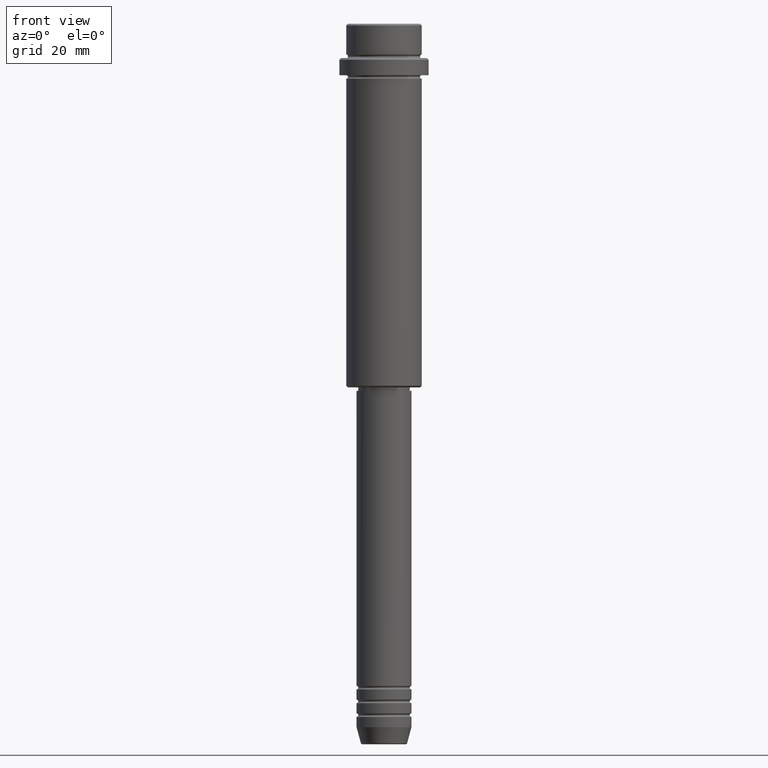
[diagram: clean part render]
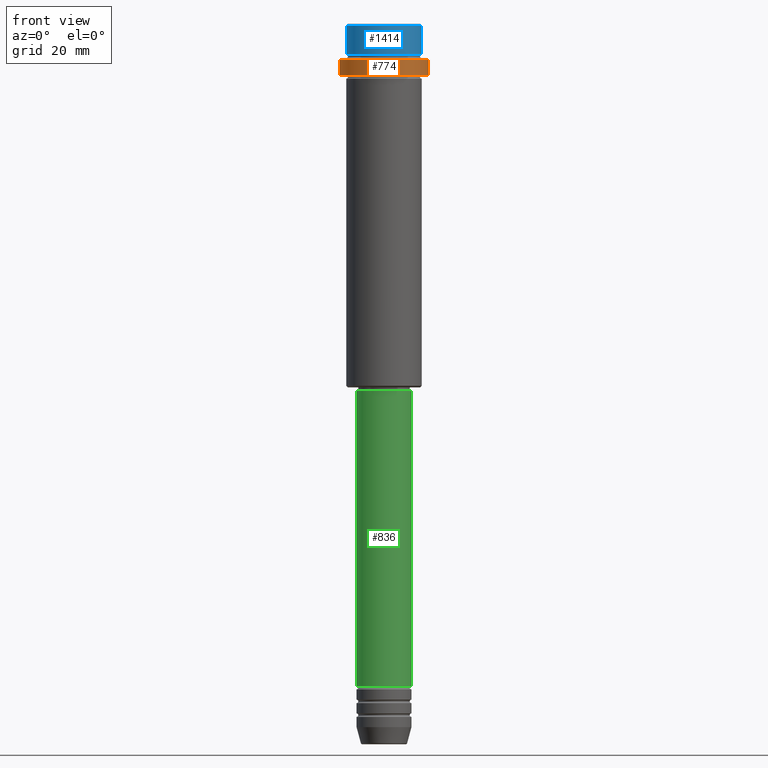
[diagram: same view with three faces highlighted in distinct colors, each labeled with its STEP entity id]
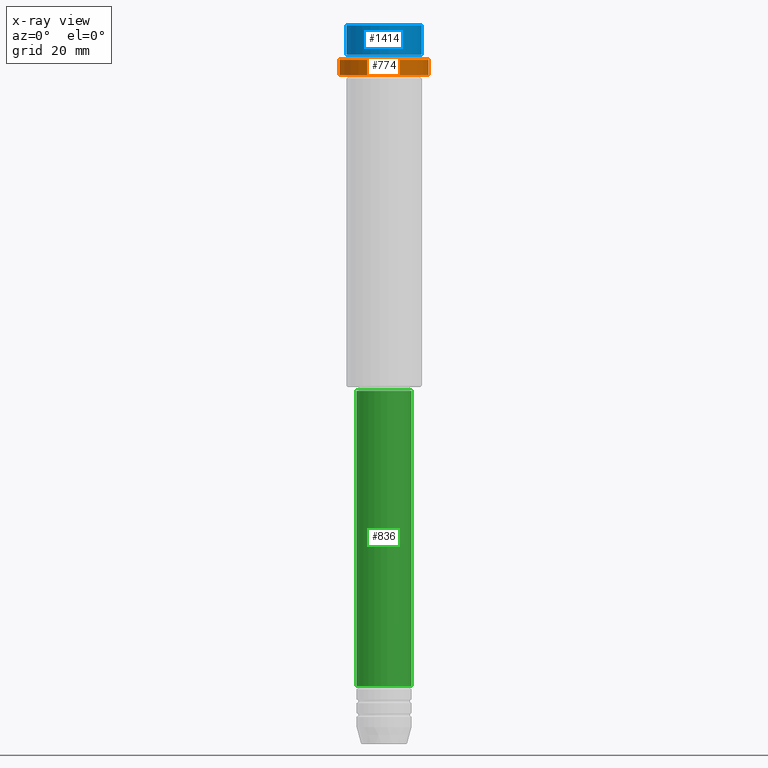
[diagram: x-ray of the same camera — body ghosted, the three highlighted faces saturated]
A machine part, front view with three faces highlighted in distinct colors.
The next image is the same camera in x-ray (body ghosted, the three faces saturated) — at least one of them is partly hidden behind the body in this view.
Their STEP definitions:

[orange] entity #774 — the highlighted cylindrical surface (partial cylindrical patch) has radius 13 mm, axis along (-0, -0, 1).
#121 = AXIS2_PLACEMENT_3D ( 'NONE', #460, #683, #980 ) ;
#130 = EDGE_CURVE ( 'NONE', #816, #616, #645, .T. ) ;
#134 = VERTEX_POINT ( 'NONE', #344 ) ;
#142 = DIRECTION ( 'NONE',  ( 1.000000000000000000, 0.000000000000000000, 0.000000000000000000 ) ) ;
#194 = EDGE_CURVE ( 'NONE', #134, #484, #755, .T. ) ;
#295 = AXIS2_PLACEMENT_3D ( 'NONE', #1321, #343, #142 ) ;
#343 = DIRECTION ( 'NONE',  ( -0.000000000000000000, -0.000000000000000000, 1.000000000000000000 ) ) ;
#344 = CARTESIAN_POINT ( 'NONE',  ( -13.00000000000000000, 1.592040838891559095E-15, -15.00000000000000178 ) ) ;
#358 = CIRCLE ( 'NONE', #121, 13.00000000000000000 ) ;
#375 = DIRECTION ( 'NONE',  ( -0.000000000000000000, -0.000000000000000000, 1.000000000000000000 ) ) ;
#384 = VECTOR ( 'NONE', #375, 1000.000000000000000 ) ;
#437 = DIRECTION ( 'NONE',  ( -0.000000000000000000, -0.000000000000000000, 1.000000000000000000 ) ) ;
#460 = CARTESIAN_POINT ( 'NONE',  ( 0.000000000000000000, 0.000000000000000000, -10.49999999999998046 ) ) ;
#484 = VERTEX_POINT ( 'NONE', #622 ) ;
#607 = VECTOR ( 'NONE', #437, 1000.000000000000000 ) ;
#616 = VERTEX_POINT ( 'NONE', #743 ) ;
#622 = CARTESIAN_POINT ( 'NONE',  ( -13.00000000000000000, 1.592040838891559095E-15, -10.49999999999998046 ) ) ;
#645 = LINE ( 'NONE', #770, #607 ) ;
#683 = DIRECTION ( 'NONE',  ( 0.000000000000000000, 0.000000000000000000, -1.000000000000000000 ) ) ;
#743 = CARTESIAN_POINT ( 'NONE',  ( 13.00000000000000000, 0.000000000000000000, -10.49999999999998046 ) ) ;
#755 = LINE ( 'NONE', #886, #384 ) ;
#766 = ORIENTED_EDGE ( 'NONE', *, *, #130, .T. ) ;
#769 = CARTESIAN_POINT ( 'NONE',  ( 13.00000000000000000, 0.000000000000000000, -15.00000000000000178 ) ) ;
#770 = CARTESIAN_POINT ( 'NONE',  ( 13.00000000000000000, 0.000000000000000000, 0.000000000000000000 ) ) ;
#774 = ADVANCED_FACE ( 'NONE', ( #792 ), #910, .T. ) ;
#792 = FACE_OUTER_BOUND ( 'NONE', #1007, .T. ) ;
#804 = EDGE_CURVE ( 'NONE', #134, #816, #879, .T. ) ;
#816 = VERTEX_POINT ( 'NONE', #769 ) ;
#879 = CIRCLE ( 'NONE', #295, 13.00000000000000000 ) ;
#880 = ORIENTED_EDGE ( 'NONE', *, *, #1140, .T. ) ;
#886 = CARTESIAN_POINT ( 'NONE',  ( -13.00000000000000000, 1.592040838891559095E-15, 0.000000000000000000 ) ) ;
#903 = ORIENTED_EDGE ( 'NONE', *, *, #804, .T. ) ;
#910 = CYLINDRICAL_SURFACE ( 'NONE', #1417, 13.00000000000000000 ) ;
#927 = CARTESIAN_POINT ( 'NONE',  ( 0.000000000000000000, 0.000000000000000000, 0.000000000000000000 ) ) ;
#980 = DIRECTION ( 'NONE',  ( 1.000000000000000000, 0.000000000000000000, 0.000000000000000000 ) ) ;
#1007 = EDGE_LOOP ( 'NONE', ( #1053, #903, #766, #880 ) ) ;
#1026 = DIRECTION ( 'NONE',  ( -0.000000000000000000, -0.000000000000000000, 1.000000000000000000 ) ) ;
#1053 = ORIENTED_EDGE ( 'NONE', *, *, #194, .F. ) ;
#1140 = EDGE_CURVE ( 'NONE', #616, #484, #358, .T. ) ;
#1234 = DIRECTION ( 'NONE',  ( 1.000000000000000000, 0.000000000000000000, 0.000000000000000000 ) ) ;
#1321 = CARTESIAN_POINT ( 'NONE',  ( 0.000000000000000000, 0.000000000000000000, -15.00000000000000178 ) ) ;
#1417 = AXIS2_PLACEMENT_3D ( 'NONE', #927, #1026, #1234 ) ;

[blue] entity #1414 — the highlighted cylindrical surface (partial cylindrical patch) has radius 11 mm, axis along (-0, -0, 1).
#101 = CARTESIAN_POINT ( 'NONE',  ( -10.99999999999998757, 1.347111479062086827E-15, -0.4999999999999605316 ) ) ;
#123 = CARTESIAN_POINT ( 'NONE',  ( 10.99999999999997158, 0.000000000000000000, -9.000000000000000000 ) ) ;
#198 = DIRECTION ( 'NONE',  ( -0.000000000000000000, -0.000000000000000000, 1.000000000000000000 ) ) ;
#299 = DIRECTION ( 'NONE',  ( -0.000000000000000000, -0.000000000000000000, 1.000000000000000000 ) ) ;
#319 = CARTESIAN_POINT ( 'NONE',  ( 10.99999999999998757, 0.000000000000000000, 0.000000000000000000 ) ) ;
#320 = EDGE_CURVE ( 'NONE', #726, #868, #1102, .T. ) ;
#332 = CARTESIAN_POINT ( 'NONE',  ( 10.99999999999998757, 0.000000000000000000, -0.4999999999999605316 ) ) ;
#340 = VECTOR ( 'NONE', #299, 1000.000000000000000 ) ;
#350 = DIRECTION ( 'NONE',  ( 1.000000000000000000, 0.000000000000000000, 0.000000000000000000 ) ) ;
#418 = CYLINDRICAL_SURFACE ( 'NONE', #1131, 10.99999999999998757 ) ;
#553 = EDGE_CURVE ( 'NONE', #1034, #592, #1274, .T. ) ;
#592 = VERTEX_POINT ( 'NONE', #101 ) ;
#605 = CARTESIAN_POINT ( 'NONE',  ( -10.99999999999998757, 1.347111479062086827E-15, 0.000000000000000000 ) ) ;
#624 = ORIENTED_EDGE ( 'NONE', *, *, #553, .F. ) ;
#682 = ORIENTED_EDGE ( 'NONE', *, *, #745, .T. ) ;
#699 = CIRCLE ( 'NONE', #1043, 10.99999999999998757 ) ;
#726 = VERTEX_POINT ( 'NONE', #123 ) ;
#745 = EDGE_CURVE ( 'NONE', #868, #592, #699, .T. ) ;
#805 = CIRCLE ( 'NONE', #998, 10.99999999999997158 ) ;
#830 = DIRECTION ( 'NONE',  ( 1.000000000000000000, 0.000000000000000000, 0.000000000000000000 ) ) ;
#832 = CARTESIAN_POINT ( 'NONE',  ( -10.99999999999997158, 1.347111479062085841E-15, -9.000000000000000000 ) ) ;
#843 = DIRECTION ( 'NONE',  ( 1.000000000000000000, 0.000000000000000000, 0.000000000000000000 ) ) ;
#868 = VERTEX_POINT ( 'NONE', #332 ) ;
#945 = DIRECTION ( 'NONE',  ( -0.000000000000000000, -0.000000000000000000, 1.000000000000000000 ) ) ;
#995 = CARTESIAN_POINT ( 'NONE',  ( 0.000000000000000000, 0.000000000000000000, -0.4999999999999605316 ) ) ;
#998 = AXIS2_PLACEMENT_3D ( 'NONE', #1164, #198, #830 ) ;
#1034 = VERTEX_POINT ( 'NONE', #832 ) ;
#1043 = AXIS2_PLACEMENT_3D ( 'NONE', #995, #1337, #350 ) ;
#1056 = CARTESIAN_POINT ( 'NONE',  ( 0.000000000000000000, 0.000000000000000000, 0.000000000000000000 ) ) ;
#1102 = LINE ( 'NONE', #319, #1113 ) ;
#1113 = VECTOR ( 'NONE', #1212, 1000.000000000000000 ) ;
#1131 = AXIS2_PLACEMENT_3D ( 'NONE', #1056, #945, #843 ) ;
#1163 = ORIENTED_EDGE ( 'NONE', *, *, #1375, .T. ) ;
#1164 = CARTESIAN_POINT ( 'NONE',  ( 0.000000000000000000, 0.000000000000000000, -9.000000000000000000 ) ) ;
#1212 = DIRECTION ( 'NONE',  ( -0.000000000000000000, -0.000000000000000000, 1.000000000000000000 ) ) ;
#1231 = EDGE_LOOP ( 'NONE', ( #624, #1163, #1283, #682 ) ) ;
#1274 = LINE ( 'NONE', #605, #340 ) ;
#1283 = ORIENTED_EDGE ( 'NONE', *, *, #320, .T. ) ;
#1337 = DIRECTION ( 'NONE',  ( 0.000000000000000000, 0.000000000000000000, -1.000000000000000000 ) ) ;
#1375 = EDGE_CURVE ( 'NONE', #1034, #726, #805, .T. ) ;
#1404 = FACE_OUTER_BOUND ( 'NONE', #1231, .T. ) ;
#1414 = ADVANCED_FACE ( 'NONE', ( #1404 ), #418, .T. ) ;

[green] entity #836 — the highlighted cylindrical surface (edge-blend (fillet) strip) has radius 8 mm, axis along (-0, -0, 1).
#29 = CARTESIAN_POINT ( 'NONE',  ( 8.000000000000000000, 0.000000000000000000, 0.000000000000000000 ) ) ;
#82 = EDGE_LOOP ( 'NONE', ( #1209, #949, #523, #1049 ) ) ;
#91 = CIRCLE ( 'NONE', #425, 8.000000000000000000 ) ;
#108 = EDGE_CURVE ( 'NONE', #819, #1245, #1207, .T. ) ;
#163 = AXIS2_PLACEMENT_3D ( 'NONE', #937, #613, #1072 ) ;
#224 = FACE_OUTER_BOUND ( 'NONE', #82, .T. ) ;
#311 = VERTEX_POINT ( 'NONE', #1320 ) ;
#312 = DIRECTION ( 'NONE',  ( 1.000000000000000000, 0.000000000000000000, 0.000000000000000000 ) ) ;
#425 = AXIS2_PLACEMENT_3D ( 'NONE', #911, #652, #312 ) ;
#442 = DIRECTION ( 'NONE',  ( -0.000000000000000000, -0.000000000000000000, 1.000000000000000000 ) ) ;
#468 = CIRCLE ( 'NONE', #163, 8.000000000000000000 ) ;
#483 = CARTESIAN_POINT ( 'NONE',  ( -8.000000000000000000, 9.797174393178825657E-16, -107.0000000000000000 ) ) ;
#523 = ORIENTED_EDGE ( 'NONE', *, *, #689, .T. ) ;
#557 = DIRECTION ( 'NONE',  ( -0.000000000000000000, -0.000000000000000000, 1.000000000000000000 ) ) ;
#565 = CYLINDRICAL_SURFACE ( 'NONE', #1062, 8.000000000000000000 ) ;
#613 = DIRECTION ( 'NONE',  ( -0.000000000000000000, -0.000000000000000000, 1.000000000000000000 ) ) ;
#651 = CARTESIAN_POINT ( 'NONE',  ( 0.000000000000000000, 0.000000000000000000, 0.000000000000000000 ) ) ;
#652 = DIRECTION ( 'NONE',  ( -0.000000000000000000, -0.000000000000000000, 1.000000000000000000 ) ) ;
#689 = EDGE_CURVE ( 'NONE', #311, #794, #977, .T. ) ;
#794 = VERTEX_POINT ( 'NONE', #796 ) ;
#796 = CARTESIAN_POINT ( 'NONE',  ( 8.000000000000000000, 0.000000000000000000, -107.0000000000000000 ) ) ;
#819 = VERTEX_POINT ( 'NONE', #1213 ) ;
#836 = ADVANCED_FACE ( 'NONE', ( #224 ), #565, .T. ) ;
#911 = CARTESIAN_POINT ( 'NONE',  ( 0.000000000000000000, 0.000000000000000000, -107.0000000000000000 ) ) ;
#937 = CARTESIAN_POINT ( 'NONE',  ( 0.000000000000000000, 0.000000000000000000, -192.9999999999999147 ) ) ;
#949 = ORIENTED_EDGE ( 'NONE', *, *, #1330, .T. ) ;
#977 = LINE ( 'NONE', #29, #978 ) ;
#978 = VECTOR ( 'NONE', #442, 1000.000000000000000 ) ;
#1049 = ORIENTED_EDGE ( 'NONE', *, *, #1278, .F. ) ;
#1062 = AXIS2_PLACEMENT_3D ( 'NONE', #651, #1189, #1303 ) ;
#1072 = DIRECTION ( 'NONE',  ( 1.000000000000000000, 0.000000000000000000, 0.000000000000000000 ) ) ;
#1089 = CARTESIAN_POINT ( 'NONE',  ( -8.000000000000000000, 9.797174393178825657E-16, 0.000000000000000000 ) ) ;
#1130 = VECTOR ( 'NONE', #557, 1000.000000000000000 ) ;
#1189 = DIRECTION ( 'NONE',  ( -0.000000000000000000, -0.000000000000000000, 1.000000000000000000 ) ) ;
#1207 = LINE ( 'NONE', #1089, #1130 ) ;
#1209 = ORIENTED_EDGE ( 'NONE', *, *, #108, .F. ) ;
#1213 = CARTESIAN_POINT ( 'NONE',  ( -8.000000000000000000, 9.797174393178825657E-16, -192.9999999999999147 ) ) ;
#1245 = VERTEX_POINT ( 'NONE', #483 ) ;
#1278 = EDGE_CURVE ( 'NONE', #1245, #794, #91, .T. ) ;
#1303 = DIRECTION ( 'NONE',  ( 1.000000000000000000, 0.000000000000000000, 0.000000000000000000 ) ) ;
#1320 = CARTESIAN_POINT ( 'NONE',  ( 8.000000000000000000, 0.000000000000000000, -192.9999999999999147 ) ) ;
#1330 = EDGE_CURVE ( 'NONE', #819, #311, #468, .T. ) ;